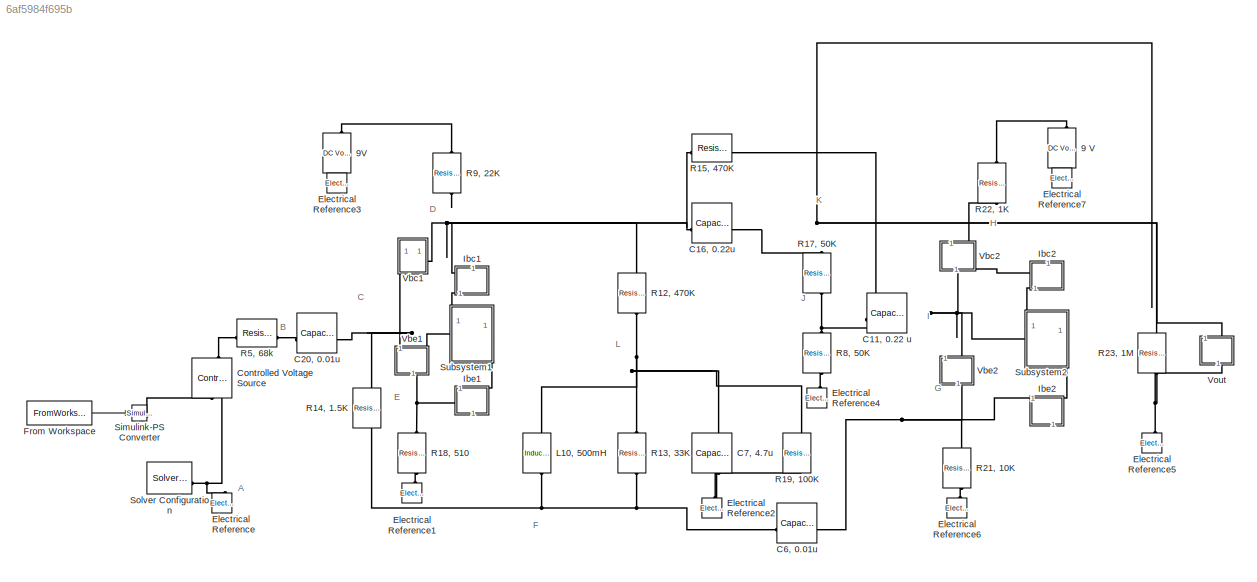
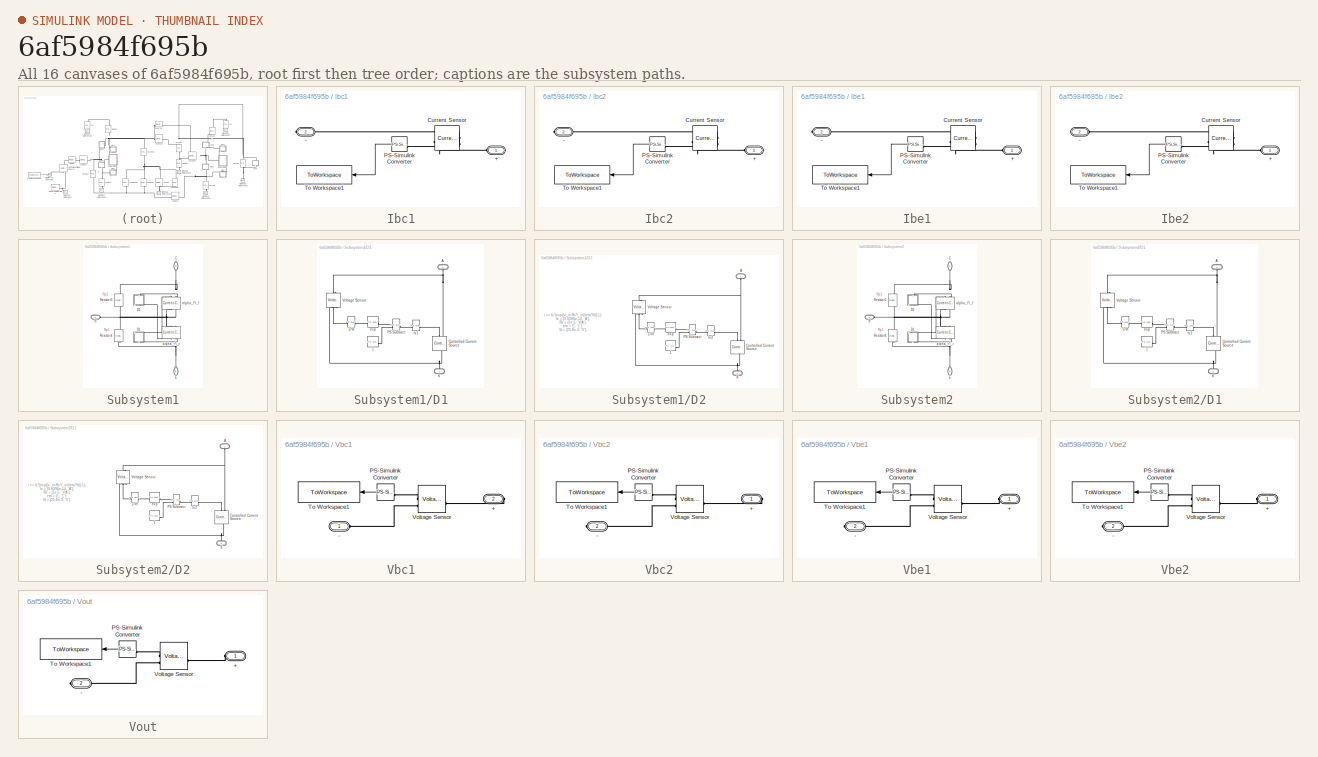
[diagram: thumbnail index - all 16 canvases of the model, root first then tree order]
MODEL slx_6af5984f695b
KIND model
CONFIG AbsTol = auto
CONFIG EnableMultiTasking = off
CONFIG FixedStep = Ts
CONFIG MaxStep = auto
CONFIG MinStep = auto
CONFIG RelTol = 1e-3
CONFIG SampleTimeConstraint = Unconstrained
CONFIG SolverName = ode1be
CONFIG StartTime = 0.0
CONFIG StopTime = stop_time
BLOCK [Reference] 9 V  REF=fl_lib/Electrical/Electrical Sources/DC Voltage Source
  NameLocation = right
  SourceBlock = fl_lib/Electrical/Electrical Sources/DC Voltage Source
  SourceType = DC Voltage Source
BLOCK [Reference] 9V  REF=fl_lib/Electrical/Electrical Sources/DC Voltage Source
  NameLocation = right
  SourceBlock = fl_lib/Electrical/Electrical Sources/DC Voltage Source
  SourceType = DC Voltage Source
BLOCK [Reference] C11, 0.22 u  REF=fl_lib/Electrical/Electrical Elements/Capacitor
  NameLocation = top
  SourceBlock = fl_lib/Electrical/Electrical Elements/Capacitor
  SourceType = Capacitor
BLOCK [Reference] C16, 0.22u  REF=fl_lib/Electrical/Electrical Elements/Capacitor
  NameLocation = top
  SourceBlock = fl_lib/Electrical/Electrical Elements/Capacitor
  SourceType = Capacitor
BLOCK [Reference] C20, 0.01u  REF=fl_lib/Electrical/Electrical Elements/Capacitor
  SourceBlock = fl_lib/Electrical/Electrical Elements/Capacitor
  SourceType = Capacitor
BLOCK [Reference] C6, 0.01u  REF=fl_lib/Electrical/Electrical Elements/Capacitor
  NameLocation = top
  SourceBlock = fl_lib/Electrical/Electrical Elements/Capacitor
  SourceType = Capacitor
BLOCK [Reference] C7, 4.7u  REF=fl_lib/Electrical/Electrical Elements/Capacitor
  NameLocation = left
  SourceBlock = fl_lib/Electrical/Electrical Elements/Capacitor
  SourceType = Capacitor
BLOCK [Reference] Controlled Voltage Source  REF=fl_lib/Electrical/Electrical Sources/Controlled Voltage
Source
  NameLocation = right
  SourceBlock = fl_lib/Electrical/Electrical Sources/Controlled Voltage\nSource
  SourceType = Controlled Voltage\nSource
BLOCK [Reference] Electrical Reference  REF=fl_lib/Electrical/Electrical Elements/Electrical Reference
  NameLocation = right
  SourceBlock = fl_lib/Electrical/Electrical Elements/Electrical Reference
  SourceType = Electrical Reference
BLOCK [Reference] Electrical Reference1  REF=fl_lib/Electrical/Electrical Elements/Electrical Reference
  NameLocation = right
  SourceBlock = fl_lib/Electrical/Electrical Elements/Electrical Reference
  SourceType = Electrical Reference
BLOCK [Reference] Electrical Reference2  REF=fl_lib/Electrical/Electrical Elements/Electrical Reference
  NameLocation = right
  SourceBlock = fl_lib/Electrical/Electrical Elements/Electrical Reference
  SourceType = Electrical Reference
BLOCK [Reference] Electrical Reference3  REF=fl_lib/Electrical/Electrical Elements/Electrical Reference
  NameLocation = right
  SourceBlock = fl_lib/Electrical/Electrical Elements/Electrical Reference
  SourceType = Electrical Reference
BLOCK [Reference] Electrical Reference4  REF=fl_lib/Electrical/Electrical Elements/Electrical Reference
  NameLocation = right
  SourceBlock = fl_lib/Electrical/Electrical Elements/Electrical Reference
  SourceType = Electrical Reference
BLOCK [Reference] Electrical Reference5  REF=fl_lib/Electrical/Electrical Elements/Electrical Reference
  NameLocation = right
  SourceBlock = fl_lib/Electrical/Electrical Elements/Electrical Reference
  SourceType = Electrical Reference
BLOCK [Reference] Electrical Reference6  REF=fl_lib/Electrical/Electrical Elements/Electrical Reference
  NameLocation = right
  SourceBlock = fl_lib/Electrical/Electrical Elements/Electrical Reference
  SourceType = Electrical Reference
BLOCK [Reference] Electrical Reference7  REF=fl_lib/Electrical/Electrical Elements/Electrical Reference
  NameLocation = right
  SourceBlock = fl_lib/Electrical/Electrical Elements/Electrical Reference
  SourceType = Electrical Reference
BLOCK [FromWorkspace] From Workspace
  VariableName = Vin
BLOCK [SubSystem] Ibc1
  NameLocation = right
BLOCK [PMIOPort] Ibc1/+
  Side = Left
BLOCK [PMIOPort] Ibc1/-
  Port = 2
  Side = Right
BLOCK [Reference] Ibc1/Current Sensor  REF=fl_lib/Electrical/Electrical Sensors/Current Sensor
  NameLocation = top
  SourceBlock = fl_lib/Electrical/Electrical Sensors/Current Sensor
  SourceType = Current Sensor
BLOCK [Reference] Ibc1/PS-Simulink Converter  REF=nesl_utility/PS-Simulink
Converter
  NameLocation = top
  SourceBlock = nesl_utility/PS-Simulink\nConverter
  SourceType = PS-Simulink\nConverter
BLOCK [ToWorkspace] Ibc1/To Workspace1
  FixptAsFi = on
  MaxDataPoints = inf
  SampleTime = -1
  SaveFormat = Timeseries
  VariableName = Ibc1
BLOCK [SubSystem] Ibc2
  NameLocation = right
BLOCK [PMIOPort] Ibc2/+
  Side = Left
BLOCK [PMIOPort] Ibc2/-
  Port = 2
  Side = Right
BLOCK [Reference] Ibc2/Current Sensor  REF=fl_lib/Electrical/Electrical Sensors/Current Sensor
  NameLocation = top
  SourceBlock = fl_lib/Electrical/Electrical Sensors/Current Sensor
  SourceType = Current Sensor
BLOCK [Reference] Ibc2/PS-Simulink Converter  REF=nesl_utility/PS-Simulink
Converter
  NameLocation = top
  SourceBlock = nesl_utility/PS-Simulink\nConverter
  SourceType = PS-Simulink\nConverter
BLOCK [ToWorkspace] Ibc2/To Workspace1
  FixptAsFi = on
  MaxDataPoints = inf
  SampleTime = -1
  SaveFormat = Timeseries
  VariableName = Ibc2
BLOCK [SubSystem] Ibe1
  NameLocation = left
BLOCK [PMIOPort] Ibe1/+
  Side = Left
BLOCK [PMIOPort] Ibe1/-
  Port = 2
  Side = Right
BLOCK [Reference] Ibe1/Current Sensor  REF=fl_lib/Electrical/Electrical Sensors/Current Sensor
  NameLocation = top
  SourceBlock = fl_lib/Electrical/Electrical Sensors/Current Sensor
  SourceType = Current Sensor
BLOCK [Reference] Ibe1/PS-Simulink Converter  REF=nesl_utility/PS-Simulink
Converter
  NameLocation = top
  SourceBlock = nesl_utility/PS-Simulink\nConverter
  SourceType = PS-Simulink\nConverter
BLOCK [ToWorkspace] Ibe1/To Workspace1
  FixptAsFi = on
  MaxDataPoints = inf
  SampleTime = -1
  SaveFormat = Timeseries
  VariableName = Ibe1
BLOCK [SubSystem] Ibe2
  NameLocation = left
  PortSchema = {"entries":[{"content":{"sides":[{"content":{"connectorIds":["LConn1"]},"type":"ConnectorPlacement.EquallySpacedRectSide","uuid":"c0c77781-7d19-4b13-84c2-226c323c58f5"},{"content":{"side":"RIGHT"},"type":"ConnectorPlacement.EquallySpacedRectSide","uuid":"c0907413-589c-4dc0-a622-9f77009212b7"},{"content":{"connectorIds":["LConn2"],"side":"TOP"},"type":"ConnectorPlacement.EquallySpacedRectSide","uui...<+227ch>
BLOCK [PMIOPort] Ibe2/+
  Side = Left
BLOCK [PMIOPort] Ibe2/-
  Port = 2
  Side = Left
BLOCK [Reference] Ibe2/Current Sensor  REF=fl_lib/Electrical/Electrical Sensors/Current Sensor
  NameLocation = top
  SourceBlock = fl_lib/Electrical/Electrical Sensors/Current Sensor
  SourceType = Current Sensor
BLOCK [Reference] Ibe2/PS-Simulink Converter  REF=nesl_utility/PS-Simulink
Converter
  NameLocation = top
  SourceBlock = nesl_utility/PS-Simulink\nConverter
  SourceType = PS-Simulink\nConverter
BLOCK [ToWorkspace] Ibe2/To Workspace1
  FixptAsFi = on
  MaxDataPoints = inf
  SampleTime = -1
  SaveFormat = Timeseries
  VariableName = Ibe2
BLOCK [Reference] L10, 500mH  REF=ee_lib/Passive/Inductor
  NameLocation = left
  SourceBlock = ee_lib/Passive/Inductor
  SourceType = Inductor
BLOCK [Reference] R12, 470K  REF=fl_lib/Electrical/Electrical Elements/Resistor
  NameLocation = left
  SourceBlock = fl_lib/Electrical/Electrical Elements/Resistor
  SourceType = Resistor
BLOCK [Reference] R13, 33K  REF=fl_lib/Electrical/Electrical Elements/Resistor
  NameLocation = left
  SourceBlock = fl_lib/Electrical/Electrical Elements/Resistor
  SourceType = Resistor
BLOCK [Reference] R14, 1.5K  REF=fl_lib/Electrical/Electrical Elements/Resistor
  NameLocation = left
  SourceBlock = fl_lib/Electrical/Electrical Elements/Resistor
  SourceType = Resistor
BLOCK [Reference] R15, 470K  REF=fl_lib/Electrical/Electrical Elements/Resistor
  NameLocation = top
  SourceBlock = fl_lib/Electrical/Electrical Elements/Resistor
  SourceType = Resistor
BLOCK [Reference] R17, 50K  REF=fl_lib/Electrical/Electrical Elements/Resistor
  NameLocation = left
  SourceBlock = fl_lib/Electrical/Electrical Elements/Resistor
  SourceType = Resistor
BLOCK [Reference] R18, 510  REF=fl_lib/Electrical/Electrical Elements/Resistor
  NameLocation = left
  SourceBlock = fl_lib/Electrical/Electrical Elements/Resistor
  SourceType = Resistor
BLOCK [Reference] R19, 100K  REF=fl_lib/Electrical/Electrical Elements/Resistor
  NameLocation = left
  SourceBlock = fl_lib/Electrical/Electrical Elements/Resistor
  SourceType = Resistor
BLOCK [Reference] R21, 10K  REF=fl_lib/Electrical/Electrical Elements/Resistor
  NameLocation = left
  SourceBlock = fl_lib/Electrical/Electrical Elements/Resistor
  SourceType = Resistor
BLOCK [Reference] R22, 1K  REF=fl_lib/Electrical/Electrical Elements/Resistor
  NameLocation = left
  SourceBlock = fl_lib/Electrical/Electrical Elements/Resistor
  SourceType = Resistor
BLOCK [Reference] R23, 1M  REF=fl_lib/Electrical/Electrical Elements/Resistor
  NameLocation = left
  SourceBlock = fl_lib/Electrical/Electrical Elements/Resistor
  SourceType = Resistor
BLOCK [Reference] R5, 68k  REF=fl_lib/Electrical/Electrical Elements/Resistor
  SourceBlock = fl_lib/Electrical/Electrical Elements/Resistor
  SourceType = Resistor
BLOCK [Reference] R8, 50K  REF=fl_lib/Electrical/Electrical Elements/Resistor
  NameLocation = left
  SourceBlock = fl_lib/Electrical/Electrical Elements/Resistor
  SourceType = Resistor
BLOCK [Reference] R9, 22K  REF=fl_lib/Electrical/Electrical Elements/Resistor
  NameLocation = left
  SourceBlock = fl_lib/Electrical/Electrical Elements/Resistor
  SourceType = Resistor
BLOCK [Reference] Simulink-PS Converter  REF=nesl_utility/Simulink-PS
Converter
  SourceBlock = nesl_utility/Simulink-PS\nConverter
  SourceType = Simulink-PS\nConverter
BLOCK [Reference] Solver Configuration  REF=nesl_utility/Solver
Configuration
  SourceBlock = nesl_utility/Solver\nConfiguration
  SourceType = Solver\nConfiguration
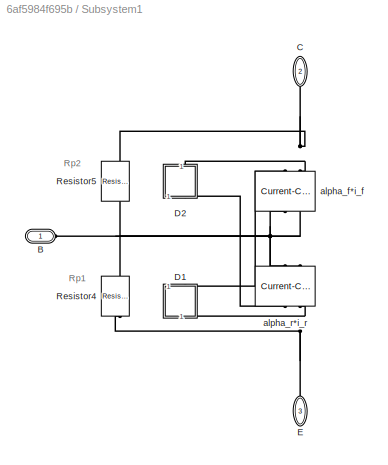
BLOCK [SubSystem] Subsystem1
  PortSchema = {"entries":[{"content":{"sides":[{"content":{"connectorIds":["LConn1"]},"type":"ConnectorPlacement.EquallySpacedRectSide","uuid":"e7d2ad01-b729-4278-a2af-615928332c77"},{"content":{"side":"RIGHT"},"type":"ConnectorPlacement.EquallySpacedRectSide","uuid":"6c8f5083-1d74-476b-8fc8-74f7e6a90163"},{"content":{"connectorIds":["LConn2"],"side":"TOP"},"type":"ConnectorPlacement.EquallySpacedRectSide","uui...<+379ch>
BLOCK [PMIOPort] Subsystem1/B
  Side = Left
BLOCK [PMIOPort] Subsystem1/C
  NameLocation = left
  Port = 2
  Side = Left
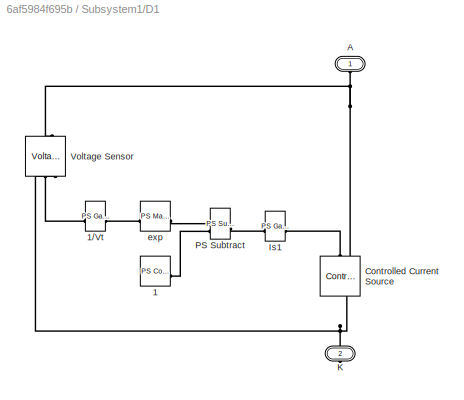
BLOCK [SubSystem] Subsystem1/D1
  NameLocation = left
BLOCK [Reference] Subsystem1/D1/1  REF=fl_lib/Physical Signals/Sources/PS Constant
  SourceBlock = fl_lib/Physical Signals/Sources/PS Constant
  SourceType = PS Constant
BLOCK [Reference] Subsystem1/D1/1//Vt  REF=fl_lib/Physical Signals/Functions/PS Gain
  SourceBlock = fl_lib/Physical Signals/Functions/PS Gain
  SourceType = PS Gain
BLOCK [PMIOPort] Subsystem1/D1/A
  NameLocation = right
  Side = Left
BLOCK [Reference] Subsystem1/D1/Controlled Current Source  REF=fl_lib/Electrical/Electrical Sources/Controlled Current
Source
  NameLocation = right
  SourceBlock = fl_lib/Electrical/Electrical Sources/Controlled Current\nSource
  SourceType = Controlled Current\nSource
BLOCK [Reference] Subsystem1/D1/Is1  REF=fl_lib/Physical Signals/Functions/PS Gain
  SourceBlock = fl_lib/Physical Signals/Functions/PS Gain
  SourceType = PS Gain
BLOCK [PMIOPort] Subsystem1/D1/K
  NameLocation = right
  Port = 2
  Side = Right
BLOCK [Reference] Subsystem1/D1/PS Subtract  REF=fl_lib/Physical Signals/Functions/PS Subtract
  NameLocation = top
  SourceBlock = fl_lib/Physical Signals/Functions/PS Subtract
  SourceType = PS Subtract
BLOCK [Reference] Subsystem1/D1/Voltage Sensor  REF=fl_lib/Electrical/Electrical Sensors/Voltage Sensor
  NameLocation = right
  SourceBlock = fl_lib/Electrical/Electrical Sensors/Voltage Sensor
  SourceType = Voltage Sensor
BLOCK [Reference] Subsystem1/D1/exp  REF=fl_lib/Physical Signals/Functions/PS Math Function
  SourceBlock = fl_lib/Physical Signals/Functions/PS Math Function
  SourceType = PS Math Function
BLOCK [SubSystem] Subsystem1/D2
  NameLocation = left
BLOCK [Reference] Subsystem1/D2/1  REF=fl_lib/Physical Signals/Sources/PS Constant
  SourceBlock = fl_lib/Physical Signals/Sources/PS Constant
  SourceType = PS Constant
BLOCK [Reference] Subsystem1/D2/1//Vt  REF=fl_lib/Physical Signals/Functions/PS Gain
  SourceBlock = fl_lib/Physical Signals/Functions/PS Gain
  SourceType = PS Gain
BLOCK [PMIOPort] Subsystem1/D2/A
  NameLocation = right
  Side = Left
BLOCK [Reference] Subsystem1/D2/Controlled Current Source  REF=fl_lib/Electrical/Electrical Sources/Controlled Current
Source
  NameLocation = right
  SourceBlock = fl_lib/Electrical/Electrical Sources/Controlled Current\nSource
  SourceType = Controlled Current\nSource
BLOCK [Reference] Subsystem1/D2/Is2  REF=fl_lib/Physical Signals/Functions/PS Gain
  SourceBlock = fl_lib/Physical Signals/Functions/PS Gain
  SourceType = PS Gain
BLOCK [PMIOPort] Subsystem1/D2/K
  NameLocation = right
  Port = 2
  Side = Right
BLOCK [Reference] Subsystem1/D2/PS Subtract  REF=fl_lib/Physical Signals/Functions/PS Subtract
  NameLocation = top
  SourceBlock = fl_lib/Physical Signals/Functions/PS Subtract
  SourceType = PS Subtract
BLOCK [Reference] Subsystem1/D2/Voltage Sensor  REF=fl_lib/Electrical/Electrical Sensors/Voltage Sensor
  NameLocation = right
  SourceBlock = fl_lib/Electrical/Electrical Sensors/Voltage Sensor
  SourceType = Voltage Sensor
BLOCK [Reference] Subsystem1/D2/exp  REF=fl_lib/Physical Signals/Functions/PS Math Function
  SourceBlock = fl_lib/Physical Signals/Functions/PS Math Function
  SourceType = PS Math Function
BLOCK [PMIOPort] Subsystem1/E
  NameLocation = right
  Port = 3
  Side = Right
BLOCK [Reference] Subsystem1/Resistor4  REF=fl_lib/Electrical/Electrical Elements/Resistor
  NameLocation = left
  SourceBlock = fl_lib/Electrical/Electrical Elements/Resistor
  SourceType = Resistor
BLOCK [Reference] Subsystem1/Resistor5  REF=fl_lib/Electrical/Electrical Elements/Resistor
  NameLocation = left
  SourceBlock = fl_lib/Electrical/Electrical Elements/Resistor
  SourceType = Resistor
BLOCK [Reference] Subsystem1/alpha_f*i_f  REF=fl_lib/Electrical/Electrical Sources/Current-Controlled
Current Source
  NameLocation = right
  SourceBlock = fl_lib/Electrical/Electrical Sources/Current-Controlled\nCurrent Source
  SourceType = Current-Controlled\nCurrent Source
BLOCK [Reference] Subsystem1/alpha_r*i_r  REF=fl_lib/Electrical/Electrical Sources/Current-Controlled
Current Source
  NameLocation = right
  SourceBlock = fl_lib/Electrical/Electrical Sources/Current-Controlled\nCurrent Source
  SourceType = Current-Controlled\nCurrent Source
BLOCK [SubSystem] Subsystem2
  PortSchema = {"entries":[{"content":{"sides":[{"content":{"connectorIds":["LConn1"]},"type":"ConnectorPlacement.EquallySpacedRectSide","uuid":"e7d2ad01-b729-4278-a2af-615928332c77"},{"content":{"side":"RIGHT"},"type":"ConnectorPlacement.EquallySpacedRectSide","uuid":"6c8f5083-1d74-476b-8fc8-74f7e6a90163"},{"content":{"connectorIds":["LConn2"],"side":"TOP"},"type":"ConnectorPlacement.EquallySpacedRectSide","uui...<+379ch>
BLOCK [PMIOPort] Subsystem2/B
  Side = Left
BLOCK [PMIOPort] Subsystem2/C
  NameLocation = left
  Port = 2
  Side = Left
BLOCK [SubSystem] Subsystem2/D1
  NameLocation = left
BLOCK [Reference] Subsystem2/D1/1  REF=fl_lib/Physical Signals/Sources/PS Constant
  SourceBlock = fl_lib/Physical Signals/Sources/PS Constant
  SourceType = PS Constant
BLOCK [Reference] Subsystem2/D1/1//Vt  REF=fl_lib/Physical Signals/Functions/PS Gain
  SourceBlock = fl_lib/Physical Signals/Functions/PS Gain
  SourceType = PS Gain
BLOCK [PMIOPort] Subsystem2/D1/A
  NameLocation = right
  Side = Left
BLOCK [Reference] Subsystem2/D1/Controlled Current Source  REF=fl_lib/Electrical/Electrical Sources/Controlled Current
Source
  NameLocation = right
  SourceBlock = fl_lib/Electrical/Electrical Sources/Controlled Current\nSource
  SourceType = Controlled Current\nSource
BLOCK [Reference] Subsystem2/D1/Is1  REF=fl_lib/Physical Signals/Functions/PS Gain
  SourceBlock = fl_lib/Physical Signals/Functions/PS Gain
  SourceType = PS Gain
BLOCK [PMIOPort] Subsystem2/D1/K
  NameLocation = right
  Port = 2
  Side = Right
BLOCK [Reference] Subsystem2/D1/PS Subtract  REF=fl_lib/Physical Signals/Functions/PS Subtract
  NameLocation = top
  SourceBlock = fl_lib/Physical Signals/Functions/PS Subtract
  SourceType = PS Subtract
BLOCK [Reference] Subsystem2/D1/Voltage Sensor  REF=fl_lib/Electrical/Electrical Sensors/Voltage Sensor
  NameLocation = right
  SourceBlock = fl_lib/Electrical/Electrical Sensors/Voltage Sensor
  SourceType = Voltage Sensor
BLOCK [Reference] Subsystem2/D1/exp  REF=fl_lib/Physical Signals/Functions/PS Math Function
  SourceBlock = fl_lib/Physical Signals/Functions/PS Math Function
  SourceType = PS Math Function
BLOCK [SubSystem] Subsystem2/D2
  NameLocation = left
BLOCK [Reference] Subsystem2/D2/1  REF=fl_lib/Physical Signals/Sources/PS Constant
  SourceBlock = fl_lib/Physical Signals/Sources/PS Constant
  SourceType = PS Constant
BLOCK [Reference] Subsystem2/D2/1//Vt  REF=fl_lib/Physical Signals/Functions/PS Gain
  SourceBlock = fl_lib/Physical Signals/Functions/PS Gain
  SourceType = PS Gain
BLOCK [PMIOPort] Subsystem2/D2/A
  NameLocation = right
  Side = Left
BLOCK [Reference] Subsystem2/D2/Controlled Current Source  REF=fl_lib/Electrical/Electrical Sources/Controlled Current
Source
  NameLocation = right
  SourceBlock = fl_lib/Electrical/Electrical Sources/Controlled Current\nSource
  SourceType = Controlled Current\nSource
BLOCK [Reference] Subsystem2/D2/Is2  REF=fl_lib/Physical Signals/Functions/PS Gain
  SourceBlock = fl_lib/Physical Signals/Functions/PS Gain
  SourceType = PS Gain
BLOCK [PMIOPort] Subsystem2/D2/K
  NameLocation = right
  Port = 2
  Side = Right
BLOCK [Reference] Subsystem2/D2/PS Subtract  REF=fl_lib/Physical Signals/Functions/PS Subtract
  NameLocation = top
  SourceBlock = fl_lib/Physical Signals/Functions/PS Subtract
  SourceType = PS Subtract
BLOCK [Reference] Subsystem2/D2/Voltage Sensor  REF=fl_lib/Electrical/Electrical Sensors/Voltage Sensor
  NameLocation = right
  SourceBlock = fl_lib/Electrical/Electrical Sensors/Voltage Sensor
  SourceType = Voltage Sensor
BLOCK [Reference] Subsystem2/D2/exp  REF=fl_lib/Physical Signals/Functions/PS Math Function
  SourceBlock = fl_lib/Physical Signals/Functions/PS Math Function
  SourceType = PS Math Function
BLOCK [PMIOPort] Subsystem2/E
  NameLocation = right
  Port = 3
  Side = Right
BLOCK [Reference] Subsystem2/Resistor4  REF=fl_lib/Electrical/Electrical Elements/Resistor
  NameLocation = left
  SourceBlock = fl_lib/Electrical/Electrical Elements/Resistor
  SourceType = Resistor
BLOCK [Reference] Subsystem2/Resistor5  REF=fl_lib/Electrical/Electrical Elements/Resistor
  NameLocation = left
  SourceBlock = fl_lib/Electrical/Electrical Elements/Resistor
  SourceType = Resistor
BLOCK [Reference] Subsystem2/alpha_f*i_f  REF=fl_lib/Electrical/Electrical Sources/Current-Controlled
Current Source
  NameLocation = right
  SourceBlock = fl_lib/Electrical/Electrical Sources/Current-Controlled\nCurrent Source
  SourceType = Current-Controlled\nCurrent Source
BLOCK [Reference] Subsystem2/alpha_r*i_r  REF=fl_lib/Electrical/Electrical Sources/Current-Controlled
Current Source
  NameLocation = right
  SourceBlock = fl_lib/Electrical/Electrical Sources/Current-Controlled\nCurrent Source
  SourceType = Current-Controlled\nCurrent Source
BLOCK [SubSystem] Vbc1
  NameLocation = top
  PortSchema = {"entries":[{"content":{"sides":[{"content":{"connectorIds":["LConn1"]},"type":"ConnectorPlacement.EquallySpacedRectSide","uuid":"7eb44552-7f97-4ce7-929d-c8e8969a6339"},{"content":{"side":"RIGHT"},"type":"ConnectorPlacement.EquallySpacedRectSide","uuid":"ace6a3d5-1573-4a81-b16e-bbe1b3c73136"},{"content":{"side":"TOP"},"type":"ConnectorPlacement.EquallySpacedRectSide","uuid":"f287eb84-5a92-47a0-b0c...<+353ch>
BLOCK [PMIOPort] Vbc1/+
  Port = 2
  Side = Right
BLOCK [PMIOPort] Vbc1/-
  Side = Left
BLOCK [Reference] Vbc1/PS-Simulink Converter  REF=nesl_utility/PS-Simulink
Converter
  NameLocation = top
  SourceBlock = nesl_utility/PS-Simulink\nConverter
  SourceType = PS-Simulink\nConverter
BLOCK [ToWorkspace] Vbc1/To Workspace1
  FixptAsFi = on
  MaxDataPoints = inf
  SampleTime = -1
  SaveFormat = Timeseries
  VariableName = Vbc1
BLOCK [Reference] Vbc1/Voltage Sensor  REF=fl_lib/Electrical/Electrical Sensors/Voltage Sensor
  SourceBlock = fl_lib/Electrical/Electrical Sensors/Voltage Sensor
  SourceType = Voltage Sensor
BLOCK [SubSystem] Vbc2
  NameLocation = left
  PortSchema = {"entries":[{"content":{"sides":[{"content":{},"type":"ConnectorPlacement.EquallySpacedRectSide","uuid":"7eb44552-7f97-4ce7-929d-c8e8969a6339"},{"content":{"connectorIds":["RConn1"],"side":"RIGHT"},"type":"ConnectorPlacement.EquallySpacedRectSide","uuid":"ace6a3d5-1573-4a81-b16e-bbe1b3c73136"},{"content":{"side":"TOP"},"type":"ConnectorPlacement.EquallySpacedRectSide","uuid":"f287eb84-5a92-47a0-b0...<+354ch>
BLOCK [PMIOPort] Vbc2/+
  Side = Right
BLOCK [PMIOPort] Vbc2/-
  Port = 2
  Side = Right
BLOCK [Reference] Vbc2/PS-Simulink Converter  REF=nesl_utility/PS-Simulink
Converter
  NameLocation = top
  SourceBlock = nesl_utility/PS-Simulink\nConverter
  SourceType = PS-Simulink\nConverter
BLOCK [ToWorkspace] Vbc2/To Workspace1
  FixptAsFi = on
  MaxDataPoints = inf
  SampleTime = -1
  SaveFormat = Timeseries
  VariableName = Vbc2
BLOCK [Reference] Vbc2/Voltage Sensor  REF=fl_lib/Electrical/Electrical Sensors/Voltage Sensor
  SourceBlock = fl_lib/Electrical/Electrical Sensors/Voltage Sensor
  SourceType = Voltage Sensor
BLOCK [SubSystem] Vbe1
  NameLocation = left
BLOCK [PMIOPort] Vbe1/+
  Side = Left
BLOCK [PMIOPort] Vbe1/-
  Port = 2
  Side = Right
BLOCK [Reference] Vbe1/PS-Simulink Converter  REF=nesl_utility/PS-Simulink
Converter
  NameLocation = top
  SourceBlock = nesl_utility/PS-Simulink\nConverter
  SourceType = PS-Simulink\nConverter
BLOCK [ToWorkspace] Vbe1/To Workspace1
  FixptAsFi = on
  MaxDataPoints = inf
  SampleTime = -1
  SaveFormat = Timeseries
  VariableName = Vbe1
BLOCK [Reference] Vbe1/Voltage Sensor  REF=fl_lib/Electrical/Electrical Sensors/Voltage Sensor
  SourceBlock = fl_lib/Electrical/Electrical Sensors/Voltage Sensor
  SourceType = Voltage Sensor
BLOCK [SubSystem] Vbe2
  NameLocation = left
BLOCK [PMIOPort] Vbe2/+
  Side = Left
BLOCK [PMIOPort] Vbe2/-
  Port = 2
  Side = Right
BLOCK [Reference] Vbe2/PS-Simulink Converter  REF=nesl_utility/PS-Simulink
Converter
  NameLocation = top
  SourceBlock = nesl_utility/PS-Simulink\nConverter
  SourceType = PS-Simulink\nConverter
BLOCK [ToWorkspace] Vbe2/To Workspace1
  FixptAsFi = on
  MaxDataPoints = inf
  SampleTime = -1
  SaveFormat = Timeseries
  VariableName = Vbe2
BLOCK [Reference] Vbe2/Voltage Sensor  REF=fl_lib/Electrical/Electrical Sensors/Voltage Sensor
  SourceBlock = fl_lib/Electrical/Electrical Sensors/Voltage Sensor
  SourceType = Voltage Sensor
BLOCK [SubSystem] Vout
  NameLocation = left
BLOCK [PMIOPort] Vout/+
  Side = Left
BLOCK [PMIOPort] Vout/-
  Port = 2
  Side = Right
BLOCK [Reference] Vout/PS-Simulink Converter  REF=nesl_utility/PS-Simulink
Converter
  NameLocation = top
  SourceBlock = nesl_utility/PS-Simulink\nConverter
  SourceType = PS-Simulink\nConverter
BLOCK [ToWorkspace] Vout/To Workspace1
  FixptAsFi = on
  MaxDataPoints = inf
  SampleTime = -1
  SaveFormat = Timeseries
  VariableName = Vout
BLOCK [Reference] Vout/Voltage Sensor  REF=fl_lib/Electrical/Electrical Sensors/Voltage Sensor
  SourceBlock = fl_lib/Electrical/Electrical Sensors/Voltage Sensor
  SourceType = Voltage Sensor
ANNOTATION (root): A
ANNOTATION (root): C
ANNOTATION (root): D
ANNOTATION (root): E
ANNOTATION (root): F
ANNOTATION (root): G
ANNOTATION (root): H
ANNOTATION (root): I
ANNOTATION (root): J
ANNOTATION (root): K
ANNOTATION (root): L
ANNOTATION (root): B
ANNOTATION Subsystem1: Rp1
ANNOTATION Subsystem1: Rp2
ANNOTATION Subsystem1/D2: i == Is*(exp((v_in-Rs*i_in)/(eta*Vt))-1); Is = {3.9396e-14, 'A' }; Rs = {1e-5, 'V/A' }; eta = {1, '1' }; Vt = {25.8e-3, 'V' };
ANNOTATION Subsystem2: Rp1
ANNOTATION Subsystem2: Rp2
ANNOTATION Subsystem2/D2: i == Is*(exp((v_in-Rs*i_in)/(eta*Vt))-1); Is = {3.9396e-14, 'A' }; Rs = {1e-5, 'V/A' }; eta = {1, '1' }; Vt = {25.8e-3, 'V' };
LINE From Workspace:1 -> Simulink-PS Converter:1
LINE Ibc1/PS-Simulink Converter:1 -> Ibc1/To Workspace1:1
LINE Ibc2/PS-Simulink Converter:1 -> Ibc2/To Workspace1:1
LINE Ibe1/PS-Simulink Converter:1 -> Ibe1/To Workspace1:1
LINE Ibe2/PS-Simulink Converter:1 -> Ibe2/To Workspace1:1
LINE Vbc1/PS-Simulink Converter:1 -> Vbc1/To Workspace1:1
LINE Vbc2/PS-Simulink Converter:1 -> Vbc2/To Workspace1:1
LINE Vbe1/PS-Simulink Converter:1 -> Vbe1/To Workspace1:1
LINE Vbe2/PS-Simulink Converter:1 -> Vbe2/To Workspace1:1
LINE Vout/PS-Simulink Converter:1 -> Vout/To Workspace1:1
PLINE 9 V:LConn1 -- R22, 1K:LConn1
PLINE 9 V:RConn1 -- Electrical Reference7:LConn1
PLINE 9V:LConn1 -- R9, 22K:LConn1
PLINE 9V:RConn1 -- Electrical Reference3:LConn1
PNET net1: C11, 0.22 u:LConn1 -- R15, 470K:LConn1 -- Subsystem2:LConn1 -- Vbc2:RConn1 -- Vbe2:LConn1
PNET net2: C11, 0.22 u:RConn1 -- R17, 50K:RConn1 -- R8, 50K:LConn1
PNET net3: C16, 0.22u:LConn1 -- R17, 50K:LConn1 -- R23, 1M:LConn1 -- Vout:LConn1
PNET net4: C16, 0.22u:RConn1 -- Ibc1:RConn1 -- R12, 470K:LConn1 -- R15, 470K:RConn1 -- R9, 22K:RConn1 -- Vbc1:LConn1
PLINE C20, 0.01u:LConn1 -- R5, 68k:RConn1
PNET net5: C20, 0.01u:RConn1 -- R14, 1.5K:LConn1 -- Subsystem1:LConn1 -- Vbc1:RConn1 -- Vbe1:LConn1
PNET net6: C6, 0.01u:LConn1 -- Ibe2:LConn2 -- R21, 10K:LConn1 -- Vbe2:RConn1
PNET net7: C6, 0.01u:RConn1 -- L10, 500mH:RConn1 -- R13, 33K:RConn1 -- R14, 1.5K:RConn1
PNET net8: C7, 4.7u:LConn1 -- L10, 500mH:LConn1 -- R12, 470K:RConn1 -- R13, 33K:LConn1 -- R19, 100K:LConn1
PNET net9: C7, 4.7u:RConn1 -- Electrical Reference2:LConn1 -- R19, 100K:RConn1
PLINE Controlled Voltage Source:LConn1 -- R5, 68k:LConn1
PLINE Controlled Voltage Source:RConn1 -- Simulink-PS Converter:RConn1
PNET net10: Controlled Voltage Source:RConn2 -- Electrical Reference:LConn1 -- Solver Configuration:RConn1
PLINE Electrical Reference1:LConn1 -- R18, 510:RConn1
PLINE Electrical Reference4:LConn1 -- R8, 50K:RConn1
PNET net11: Electrical Reference5:LConn1 -- R23, 1M:RConn1 -- Vout:RConn1
PLINE Electrical Reference6:LConn1 -- R21, 10K:RConn1
PLINE Ibc1/+:RConn1 -- Ibc1/Current Sensor:LConn1
PLINE Ibc1/-:RConn1 -- Ibc1/Current Sensor:RConn2
PLINE Ibc1/Current Sensor:RConn1 -- Ibc1/PS-Simulink Converter:LConn1
PLINE Ibc1:LConn1 -- Subsystem1:LConn2
PLINE Ibc2/+:RConn1 -- Ibc2/Current Sensor:LConn1
PLINE Ibc2/-:RConn1 -- Ibc2/Current Sensor:RConn2
PLINE Ibc2/Current Sensor:RConn1 -- Ibc2/PS-Simulink Converter:LConn1
PLINE Ibc2:LConn1 -- Subsystem2:LConn2
PNET net12: Ibc2:RConn1 -- R22, 1K:RConn1 -- Vbc2:RConn2
PLINE Ibe1/+:RConn1 -- Ibe1/Current Sensor:LConn1
PLINE Ibe1/-:RConn1 -- Ibe1/Current Sensor:RConn2
PLINE Ibe1/Current Sensor:RConn1 -- Ibe1/PS-Simulink Converter:LConn1
PLINE Ibe1:LConn1 -- Subsystem1:RConn1
PNET net13: Ibe1:RConn1 -- R18, 510:LConn1 -- Vbe1:RConn1
PLINE Ibe2/+:RConn1 -- Ibe2/Current Sensor:LConn1
PLINE Ibe2/-:RConn1 -- Ibe2/Current Sensor:RConn2
PLINE Ibe2/Current Sensor:RConn1 -- Ibe2/PS-Simulink Converter:LConn1
PLINE Ibe2:LConn1 -- Subsystem2:RConn1
PNET net14: Subsystem1/B:RConn1 -- Subsystem1/Resistor4:LConn1 -- Subsystem1/Resistor5:RConn1 -- Subsystem1/alpha_f*i_f:LConn1 -- Subsystem1/alpha_f*i_f:LConn2 -- Subsystem1/alpha_r*i_r:LConn1 -- Subsystem1/alpha_r*i_r:LConn2
PNET net15: Subsystem1/C:RConn1 -- Subsystem1/D2:RConn1 -- Subsystem1/Resistor5:LConn1 -- Subsystem1/alpha_f*i_f:RConn2
PLINE Subsystem1/D1/1//Vt:LConn1 -- Subsystem1/D1/Voltage Sensor:RConn1
PLINE Subsystem1/D1/1//Vt:RConn1 -- Subsystem1/D1/exp:LConn1
PLINE Subsystem1/D1/1:RConn1 -- Subsystem1/D1/PS Subtract:LConn2
PNET net16: Subsystem1/D1/A:RConn1 -- Subsystem1/D1/Controlled Current Source:RConn2 -- Subsystem1/D1/Voltage Sensor:LConn1
PNET net17: Subsystem1/D1/Controlled Current Source:LConn1 -- Subsystem1/D1/K:RConn1 -- Subsystem1/D1/Voltage Sensor:RConn2
PLINE Subsystem1/D1/Controlled Current Source:RConn1 -- Subsystem1/D1/Is1:RConn1
PLINE Subsystem1/D1/Is1:LConn1 -- Subsystem1/D1/PS Subtract:RConn1
PLINE Subsystem1/D1/PS Subtract:LConn1 -- Subsystem1/D1/exp:RConn1
PLINE Subsystem1/D1:LConn1 -- Subsystem1/alpha_f*i_f:RConn1
PNET net18: Subsystem1/D1:RConn1 -- Subsystem1/E:RConn1 -- Subsystem1/Resistor4:RConn1 -- Subsystem1/alpha_r*i_r:RConn2
PLINE Subsystem1/D2/1//Vt:LConn1 -- Subsystem1/D2/Voltage Sensor:RConn1
PLINE Subsystem1/D2/1//Vt:RConn1 -- Subsystem1/D2/exp:LConn1
PLINE Subsystem1/D2/1:RConn1 -- Subsystem1/D2/PS Subtract:LConn2
PNET net19: Subsystem1/D2/A:RConn1 -- Subsystem1/D2/Controlled Current Source:RConn2 -- Subsystem1/D2/Voltage Sensor:LConn1
PNET net20: Subsystem1/D2/Controlled Current Source:LConn1 -- Subsystem1/D2/K:RConn1 -- Subsystem1/D2/Voltage Sensor:RConn2
PLINE Subsystem1/D2/Controlled Current Source:RConn1 -- Subsystem1/D2/Is2:RConn1
PLINE Subsystem1/D2/Is2:LConn1 -- Subsystem1/D2/PS Subtract:RConn1
PLINE Subsystem1/D2/PS Subtract:LConn1 -- Subsystem1/D2/exp:RConn1
PLINE Subsystem1/D2:LConn1 -- Subsystem1/alpha_r*i_r:RConn1
PNET net21: Subsystem2/B:RConn1 -- Subsystem2/Resistor4:LConn1 -- Subsystem2/Resistor5:RConn1 -- Subsystem2/alpha_f*i_f:LConn1 -- Subsystem2/alpha_f*i_f:LConn2 -- Subsystem2/alpha_r*i_r:LConn1 -- Subsystem2/alpha_r*i_r:LConn2
PNET net22: Subsystem2/C:RConn1 -- Subsystem2/D2:RConn1 -- Subsystem2/Resistor5:LConn1 -- Subsystem2/alpha_f*i_f:RConn2
PLINE Subsystem2/D1/1//Vt:LConn1 -- Subsystem2/D1/Voltage Sensor:RConn1
PLINE Subsystem2/D1/1//Vt:RConn1 -- Subsystem2/D1/exp:LConn1
PLINE Subsystem2/D1/1:RConn1 -- Subsystem2/D1/PS Subtract:LConn2
PNET net23: Subsystem2/D1/A:RConn1 -- Subsystem2/D1/Controlled Current Source:RConn2 -- Subsystem2/D1/Voltage Sensor:LConn1
PNET net24: Subsystem2/D1/Controlled Current Source:LConn1 -- Subsystem2/D1/K:RConn1 -- Subsystem2/D1/Voltage Sensor:RConn2
PLINE Subsystem2/D1/Controlled Current Source:RConn1 -- Subsystem2/D1/Is1:RConn1
PLINE Subsystem2/D1/Is1:LConn1 -- Subsystem2/D1/PS Subtract:RConn1
PLINE Subsystem2/D1/PS Subtract:LConn1 -- Subsystem2/D1/exp:RConn1
PLINE Subsystem2/D1:LConn1 -- Subsystem2/alpha_f*i_f:RConn1
PNET net25: Subsystem2/D1:RConn1 -- Subsystem2/E:RConn1 -- Subsystem2/Resistor4:RConn1 -- Subsystem2/alpha_r*i_r:RConn2
PLINE Subsystem2/D2/1//Vt:LConn1 -- Subsystem2/D2/Voltage Sensor:RConn1
PLINE Subsystem2/D2/1//Vt:RConn1 -- Subsystem2/D2/exp:LConn1
PLINE Subsystem2/D2/1:RConn1 -- Subsystem2/D2/PS Subtract:LConn2
PNET net26: Subsystem2/D2/A:RConn1 -- Subsystem2/D2/Controlled Current Source:RConn2 -- Subsystem2/D2/Voltage Sensor:LConn1
PNET net27: Subsystem2/D2/Controlled Current Source:LConn1 -- Subsystem2/D2/K:RConn1 -- Subsystem2/D2/Voltage Sensor:RConn2
PLINE Subsystem2/D2/Controlled Current Source:RConn1 -- Subsystem2/D2/Is2:RConn1
PLINE Subsystem2/D2/Is2:LConn1 -- Subsystem2/D2/PS Subtract:RConn1
PLINE Subsystem2/D2/PS Subtract:LConn1 -- Subsystem2/D2/exp:RConn1
PLINE Subsystem2/D2:LConn1 -- Subsystem2/alpha_r*i_r:RConn1
PLINE Vbc1/+:RConn1 -- Vbc1/Voltage Sensor:LConn1
PLINE Vbc1/-:RConn1 -- Vbc1/Voltage Sensor:RConn2
PLINE Vbc1/PS-Simulink Converter:LConn1 -- Vbc1/Voltage Sensor:RConn1
PLINE Vbc2/+:RConn1 -- Vbc2/Voltage Sensor:LConn1
PLINE Vbc2/-:RConn1 -- Vbc2/Voltage Sensor:RConn2
PLINE Vbc2/PS-Simulink Converter:LConn1 -- Vbc2/Voltage Sensor:RConn1
PLINE Vbe1/+:RConn1 -- Vbe1/Voltage Sensor:LConn1
PLINE Vbe1/-:RConn1 -- Vbe1/Voltage Sensor:RConn2
PLINE Vbe1/PS-Simulink Converter:LConn1 -- Vbe1/Voltage Sensor:RConn1
PLINE Vbe2/+:RConn1 -- Vbe2/Voltage Sensor:LConn1
PLINE Vbe2/-:RConn1 -- Vbe2/Voltage Sensor:RConn2
PLINE Vbe2/PS-Simulink Converter:LConn1 -- Vbe2/Voltage Sensor:RConn1
PLINE Vout/+:RConn1 -- Vout/Voltage Sensor:LConn1
PLINE Vout/-:RConn1 -- Vout/Voltage Sensor:RConn2
PLINE Vout/PS-Simulink Converter:LConn1 -- Vout/Voltage Sensor:RConn1
note: PNET lines group multi-terminal physical nets as a canonical sorted terminal list (undirected conserving connections); 2-terminal nets keep the pairwise PLINE form
